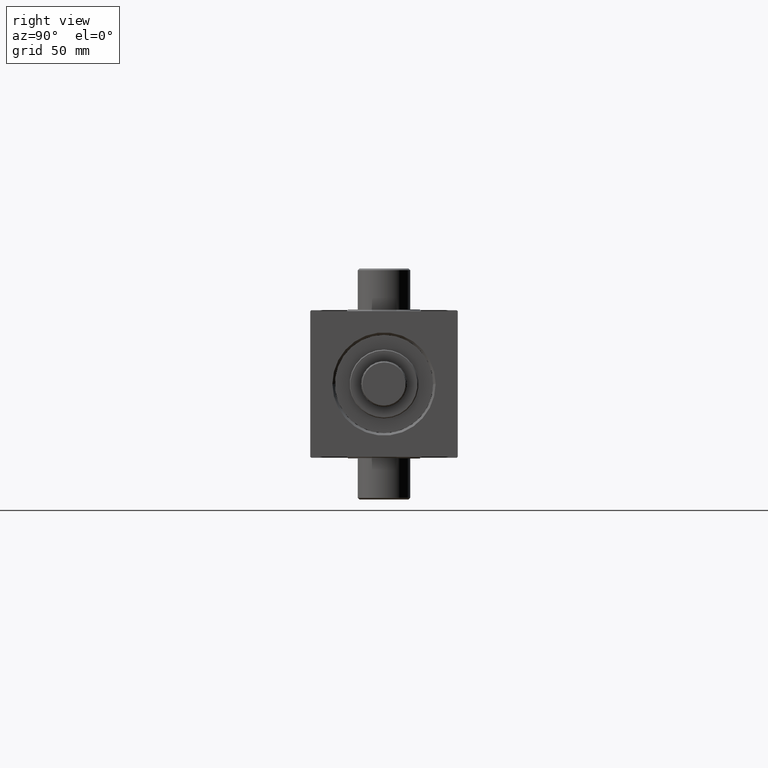
[diagram: clean part render]
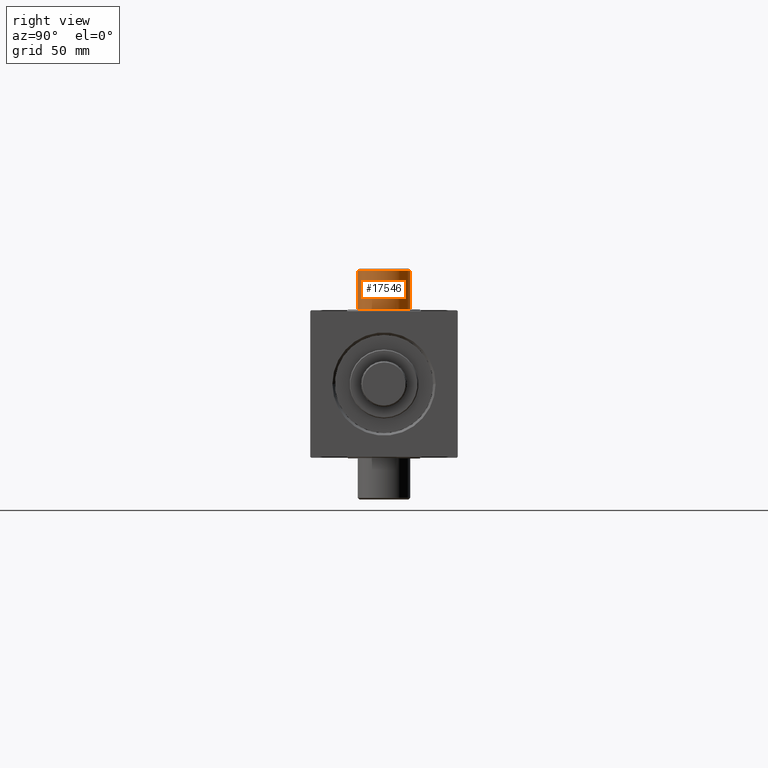
[diagram: same view with one face highlighted and labeled with its STEP entity id]
A machine part, right view. The second image highlights one B-rep face of the part: STEP entity #17546.
In plain terms, the highlighted cylindrical surface (edge-blend (fillet) strip) has radius 16 mm, axis along (0, 0, -1).
Its self-contained STEP definition (entity closure, byte-faithful):
#642 = EDGE_CURVE ( 'NONE', #30068, #40775, #26137, .T. ) ;
#3936 = DIRECTION ( 'NONE',  ( 0.000000000000000000, 0.000000000000000000, 1.000000000000000000 ) ) ;
#4903 = CARTESIAN_POINT ( 'NONE',  ( 300.0000000000000000, -70.50000000000000000, 16.00000000000002132 ) ) ;
#6304 = VECTOR ( 'NONE', #8465, 1000.000000000000000 ) ;
#6403 = EDGE_CURVE ( 'NONE', #40775, #8386, #35107, .T. ) ;
#7735 = AXIS2_PLACEMENT_3D ( 'NONE', #7820, #25462, #22356 ) ;
#7820 = CARTESIAN_POINT ( 'NONE',  ( 300.0000000000000000, -45.49999999999999289, -8.673617379884004657E-17 ) ) ;
#8313 = VERTEX_POINT ( 'NONE', #14214 ) ;
#8386 = VERTEX_POINT ( 'NONE', #11335 ) ;
#8465 = DIRECTION ( 'NONE',  ( -0.000000000000000000, 1.000000000000000000, 8.673617379884036705E-17 ) ) ;
#9201 = CYLINDRICAL_SURFACE ( 'NONE', #12521, 16.00000000000002487 ) ;
#9708 = EDGE_CURVE ( 'NONE', #8313, #30068, #32825, .T. ) ;
#11335 = CARTESIAN_POINT ( 'NONE',  ( 300.0000000000000000, -45.49999999999999289, 16.00000000000002487 ) ) ;
#12521 = AXIS2_PLACEMENT_3D ( 'NONE', #20168, #32532, #3936 ) ;
#13767 = EDGE_CURVE ( 'NONE', #8313, #8386, #33732, .T. ) ;
#14214 = CARTESIAN_POINT ( 'NONE',  ( 300.0000000000000000, -69.50000000000008527, 16.00000000000002132 ) ) ;
#14395 = DIRECTION ( 'NONE',  ( 0.000000000000000000, 1.000000000000000000, 8.673617379884030542E-17 ) ) ;
#15095 = CARTESIAN_POINT ( 'NONE',  ( 300.0000000000000000, -69.50000000000008527, -2.168404344971017151E-15 ) ) ;
#15165 = VECTOR ( 'NONE', #44204, 1000.000000000000000 ) ;
#17546 = ADVANCED_FACE ( 'NONE', ( #24447 ), #9201, .T. ) ;
#20168 = CARTESIAN_POINT ( 'NONE',  ( 300.0000000000000000, -70.50000000000000000, -2.255140518769849223E-15 ) ) ;
#22356 = DIRECTION ( 'NONE',  ( 0.000000000000000000, 0.000000000000000000, -1.000000000000000000 ) ) ;
#22473 = ORIENTED_EDGE ( 'NONE', *, *, #13767, .F. ) ;
#24245 = ORIENTED_EDGE ( 'NONE', *, *, #6403, .T. ) ;
#24447 = FACE_OUTER_BOUND ( 'NONE', #29039, .T. ) ;
#25462 = DIRECTION ( 'NONE',  ( 0.000000000000000000, -1.000000000000000000, -8.673617379884036705E-17 ) ) ;
#26137 = LINE ( 'NONE', #29705, #15165 ) ;
#27464 = CARTESIAN_POINT ( 'NONE',  ( 300.0000000000000000, -69.50000000000008527, -16.00000000000002842 ) ) ;
#27590 = AXIS2_PLACEMENT_3D ( 'NONE', #15095, #14395, #28911 ) ;
#28911 = DIRECTION ( 'NONE',  ( 0.000000000000000000, 0.000000000000000000, -1.000000000000000000 ) ) ;
#29039 = EDGE_LOOP ( 'NONE', ( #37294, #30705, #24245, #22473 ) ) ;
#29705 = CARTESIAN_POINT ( 'NONE',  ( 300.0000000000000000, -70.50000000000000000, -16.00000000000002842 ) ) ;
#30068 = VERTEX_POINT ( 'NONE', #27464 ) ;
#30705 = ORIENTED_EDGE ( 'NONE', *, *, #642, .T. ) ;
#32532 = DIRECTION ( 'NONE',  ( -0.000000000000000000, 1.000000000000000000, 8.673617379884036705E-17 ) ) ;
#32825 = CIRCLE ( 'NONE', #27590, 16.00000000000002487 ) ;
#33732 = LINE ( 'NONE', #4903, #6304 ) ;
#35107 = CIRCLE ( 'NONE', #7735, 16.00000000000002487 ) ;
#37294 = ORIENTED_EDGE ( 'NONE', *, *, #9708, .T. ) ;
#37683 = CARTESIAN_POINT ( 'NONE',  ( 300.0000000000000000, -45.49999999999999289, -16.00000000000002487 ) ) ;
#40775 = VERTEX_POINT ( 'NONE', #37683 ) ;
#44204 = DIRECTION ( 'NONE',  ( -0.000000000000000000, 1.000000000000000000, 8.673617379884036705E-17 ) ) ;